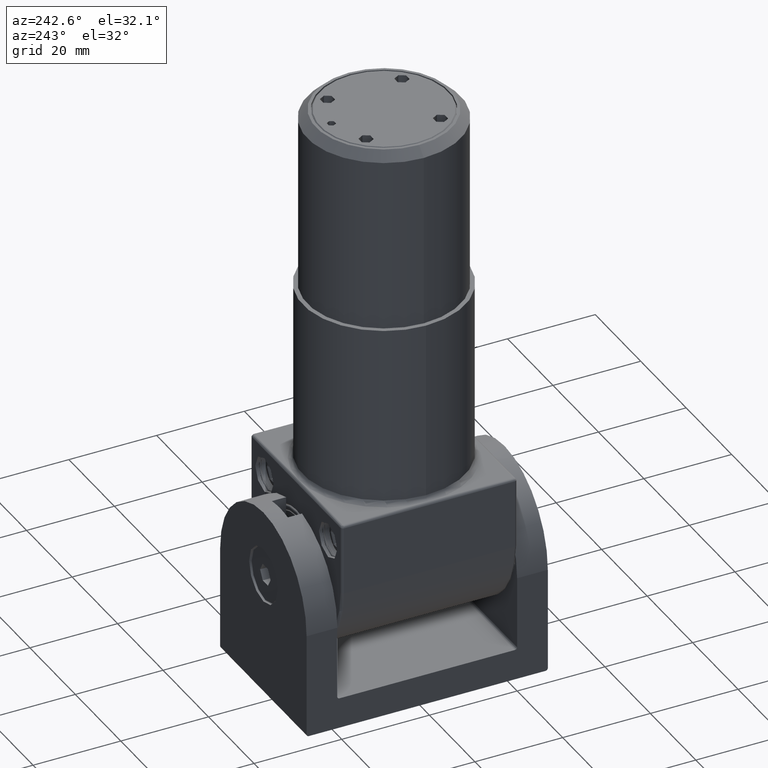
[diagram: clean part render]
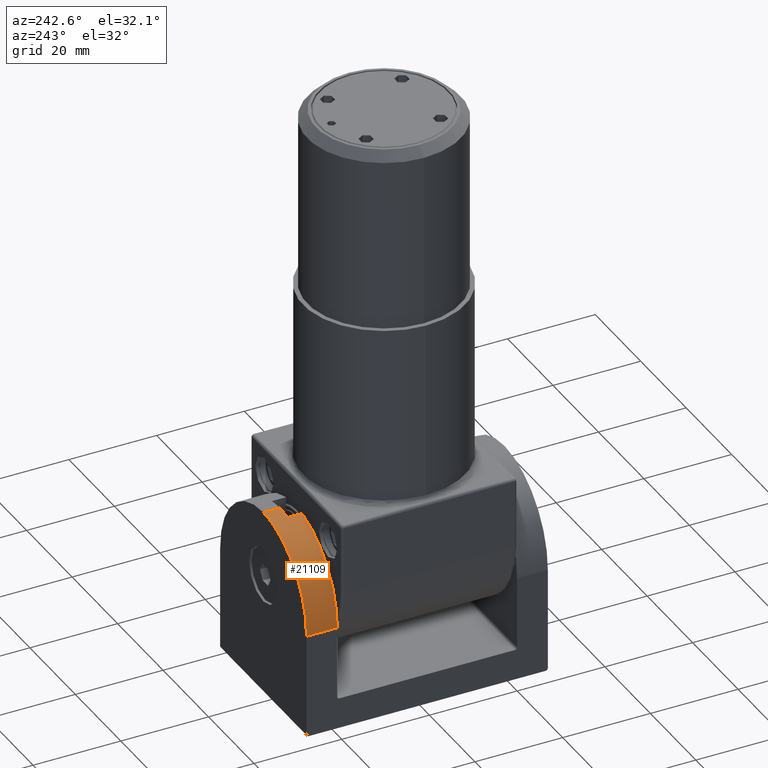
[diagram: same view with one face highlighted and labeled with its STEP entity id]
A machine part, auxiliary view. The second image highlights one B-rep face of the part: STEP entity #21109.
In plain terms, the highlighted cylindrical surface (partial cylindrical patch) has radius 19 mm, axis along (0, -1, 0).
Its self-contained STEP definition (entity closure, byte-faithful):
#287 = CARTESIAN_POINT ( 'NONE',  ( -3.500000000000000000, 20.49999999999999645, 42.67484939698309887 ) ) ;
#794 = EDGE_CURVE ( 'NONE', #19017, #9876, #19196, .T. ) ;
#1339 = AXIS2_PLACEMENT_3D ( 'NONE', #16961, #4617, #20447 ) ;
#1418 = DIRECTION ( 'NONE',  ( 0.000000000000000000, 0.000000000000000000, 1.000000000000000000 ) ) ;
#1933 = EDGE_CURVE ( 'NONE', #21786, #19017, #13025, .T. ) ;
#2305 = CARTESIAN_POINT ( 'NONE',  ( 0.000000000000000000, 27.50000000000000000, 23.99999999999999645 ) ) ;
#2353 = CIRCLE ( 'NONE', #1339, 19.00000000000000000 ) ;
#2639 = FACE_OUTER_BOUND ( 'NONE', #5579, .T. ) ;
#4229 = ORIENTED_EDGE ( 'NONE', *, *, #12678, .F. ) ;
#4617 = DIRECTION ( 'NONE',  ( -0.000000000000000000, 1.000000000000000000, -0.000000000000000000 ) ) ;
#4872 = DIRECTION ( 'NONE',  ( 0.000000000000000000, 1.000000000000000000, 0.000000000000000000 ) ) ;
#5028 = CARTESIAN_POINT ( 'NONE',  ( 0.000000000000000000, 27.50000000000000000, 43.00000000000000000 ) ) ;
#5299 = AXIS2_PLACEMENT_3D ( 'NONE', #13645, #10009, #1418 ) ;
#5321 = AXIS2_PLACEMENT_3D ( 'NONE', #2305, #12918, #21926 ) ;
#5579 = EDGE_LOOP ( 'NONE', ( #9691, #9910, #10159, #13529, #4229, #22827 ) ) ;
#5788 = DIRECTION ( 'NONE',  ( 0.000000000000000000, -1.000000000000000000, 0.000000000000000000 ) ) ;
#5942 = CARTESIAN_POINT ( 'NONE',  ( -19.00000000000000000, 27.50000000000000000, 23.99999999999999645 ) ) ;
#6412 = EDGE_CURVE ( 'NONE', #21786, #21425, #19656, .T. ) ;
#6676 = EDGE_CURVE ( 'NONE', #21425, #19392, #16858, .T. ) ;
#7637 = VERTEX_POINT ( 'NONE', #5942 ) ;
#7981 = CARTESIAN_POINT ( 'NONE',  ( -3.500000000000000000, 23.75000000000000000, 42.67484939698309887 ) ) ;
#9647 = CARTESIAN_POINT ( 'NONE',  ( 0.000000000000000000, 27.50000000000000000, 43.00000000000000000 ) ) ;
#9691 = ORIENTED_EDGE ( 'NONE', *, *, #1933, .F. ) ;
#9876 = VERTEX_POINT ( 'NONE', #17959 ) ;
#9910 = ORIENTED_EDGE ( 'NONE', *, *, #6412, .T. ) ;
#10009 = DIRECTION ( 'NONE',  ( 0.000000000000000000, -1.000000000000000000, -0.000000000000000000 ) ) ;
#10159 = ORIENTED_EDGE ( 'NONE', *, *, #6676, .T. ) ;
#11412 = VECTOR ( 'NONE', #19274, 1000.000000000000000 ) ;
#11868 = VECTOR ( 'NONE', #22072, 1000.000000000000000 ) ;
#12212 = VECTOR ( 'NONE', #5788, 1000.000000000000000 ) ;
#12678 = EDGE_CURVE ( 'NONE', #9876, #7637, #18073, .T. ) ;
#12855 = CARTESIAN_POINT ( 'NONE',  ( -3.500000000000000000, 27.50000000000000000, 42.67484939698309887 ) ) ;
#12918 = DIRECTION ( 'NONE',  ( 0.000000000000000000, -1.000000000000000000, 0.000000000000000000 ) ) ;
#13025 = LINE ( 'NONE', #12855, #12212 ) ;
#13468 = AXIS2_PLACEMENT_3D ( 'NONE', #17444, #4872, #14252 ) ;
#13529 = ORIENTED_EDGE ( 'NONE', *, *, #21510, .F. ) ;
#13645 = CARTESIAN_POINT ( 'NONE',  ( 0.000000000000000000, 20.50000000000000000, 23.99999999999999645 ) ) ;
#14252 = DIRECTION ( 'NONE',  ( 0.000000000000000000, 0.000000000000000000, 1.000000000000000000 ) ) ;
#15104 = CYLINDRICAL_SURFACE ( 'NONE', #5321, 19.00000000000000000 ) ;
#16858 = LINE ( 'NONE', #9647, #11868 ) ;
#16961 = CARTESIAN_POINT ( 'NONE',  ( 0.000000000000000000, 27.50000000000000000, 23.99999999999999645 ) ) ;
#17444 = CARTESIAN_POINT ( 'NONE',  ( 0.000000000000000000, 23.75000000000000000, 23.99999999999999645 ) ) ;
#17959 = CARTESIAN_POINT ( 'NONE',  ( -19.00000000000000000, 20.50000000000000000, 23.99999999999999645 ) ) ;
#18073 = LINE ( 'NONE', #22835, #11412 ) ;
#19017 = VERTEX_POINT ( 'NONE', #287 ) ;
#19196 = CIRCLE ( 'NONE', #5299, 19.00000000000000000 ) ;
#19274 = DIRECTION ( 'NONE',  ( -0.000000000000000000, 1.000000000000000000, -0.000000000000000000 ) ) ;
#19392 = VERTEX_POINT ( 'NONE', #5028 ) ;
#19656 = CIRCLE ( 'NONE', #13468, 19.00000000000000000 ) ;
#20447 = DIRECTION ( 'NONE',  ( 0.000000000000000000, 0.000000000000000000, -1.000000000000000000 ) ) ;
#21109 = ADVANCED_FACE ( 'NONE', ( #2639 ), #15104, .T. ) ;
#21425 = VERTEX_POINT ( 'NONE', #21569 ) ;
#21510 = EDGE_CURVE ( 'NONE', #7637, #19392, #2353, .T. ) ;
#21569 = CARTESIAN_POINT ( 'NONE',  ( 0.000000000000000000, 23.75000000000000000, 43.00000000000000000 ) ) ;
#21786 = VERTEX_POINT ( 'NONE', #7981 ) ;
#21926 = DIRECTION ( 'NONE',  ( 0.000000000000000000, 0.000000000000000000, -1.000000000000000000 ) ) ;
#22072 = DIRECTION ( 'NONE',  ( -0.000000000000000000, 1.000000000000000000, -0.000000000000000000 ) ) ;
#22827 = ORIENTED_EDGE ( 'NONE', *, *, #794, .F. ) ;
#22835 = CARTESIAN_POINT ( 'NONE',  ( -19.00000000000000000, 0.000000000000000000, 23.99999999999999645 ) ) ;